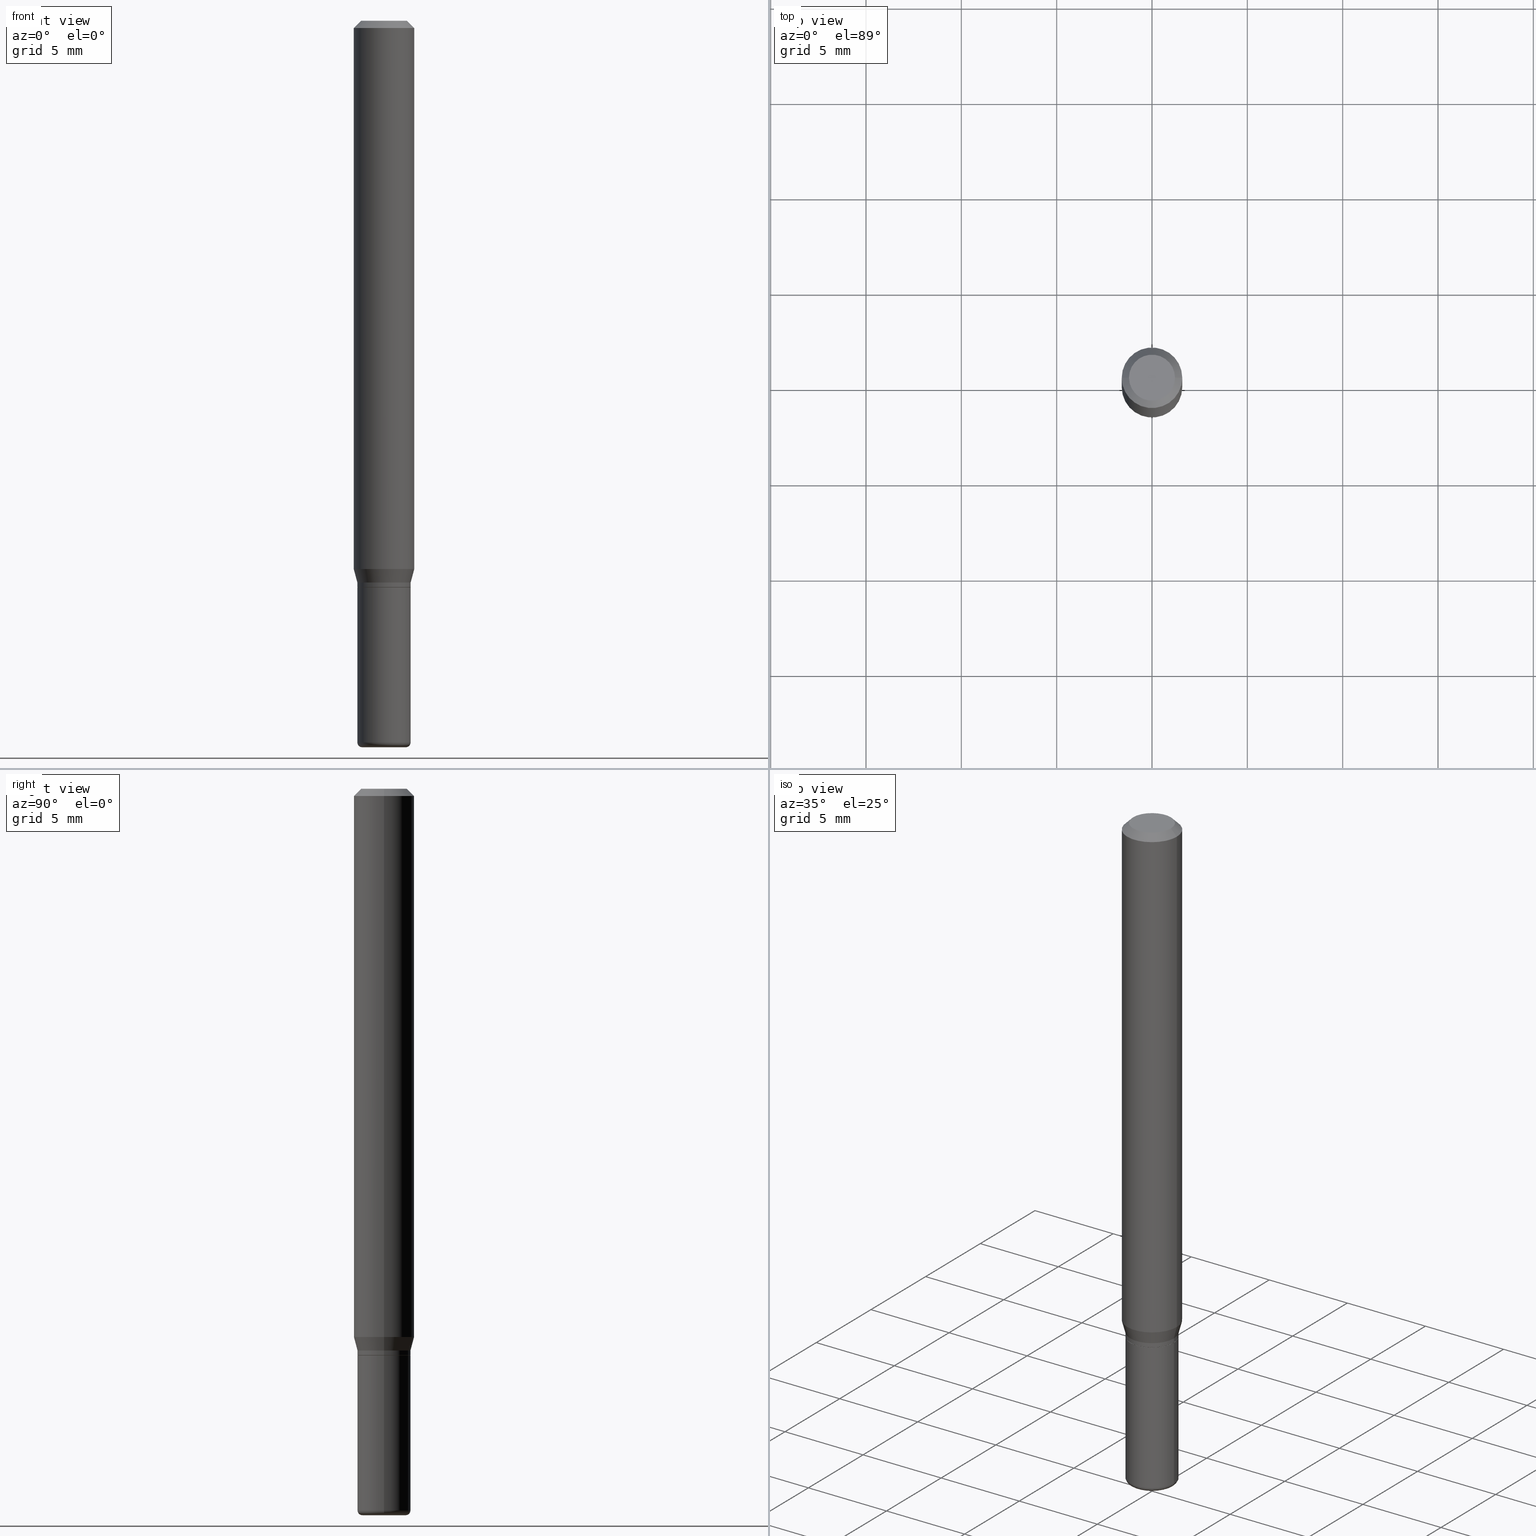
[diagram: canonical four-view strip — front | top / right | iso, engineering-drawing reading convention]
A machine part, canonical four-view strip (front | top / right | iso — engineering-drawing reading convention). The complete STEP part file that produces these views, byte-faithful:
ISO-10303-21;
HEADER;
FILE_DESCRIPTION (( 'STEP AP203' ),
    '1' );
FILE_NAME ('08614.STEP',
    '2024-02-29T19:59:59',
    ( '' ),
    ( '' ),
    'SwSTEP 2.0',
    'SolidWorks 2023',
    '' );
FILE_SCHEMA (( 'CONFIG_CONTROL_DESIGN' ));
ENDSEC;

DATA;
#1 = CARTESIAN_POINT ( 'NONE',  ( -0.05499999999999995171, -3.659319848389994547E-15, -1.160000000000000142 ) ) ;
#2 = DIRECTION ( 'NONE',  ( -2.445468806185136877E-29, 3.491481338843145188E-15, 1.000000000000000000 ) ) ;
#3 = VERTEX_POINT ( 'NONE', #42 ) ;
#4 = EDGE_CURVE ( 'NONE', #339, #324, #510, .T. ) ;
#5 = PRODUCT_DEFINITION_SHAPE ( 'NONE', 'NONE',  #169 ) ;
#6 = CARTESIAN_POINT ( 'NONE',  ( -0.05449999999999997208, -3.695138148283114316E-15, -1.170000000000000151 ) ) ;
#7 = EDGE_CURVE ( 'NONE', #324, #402, #245, .T. ) ;
#8 = EDGE_LOOP ( 'NONE', ( #106, #398, #51, #58 ) ) ;
#9 = EDGE_LOOP ( 'NONE', ( #229, #232, #21, #352 ) ) ;
#10 = PERSON_AND_ORGANIZATION_ROLE ( 'design_owner' ) ;
#11 = CARTESIAN_POINT ( 'NONE',  ( 0.05499999999999995864, -3.840629472727443437E-16, 2.681897226687762724E-30 ) ) ;
#12 = APPLICATION_CONTEXT ( 'configuration controlled 3d designs of mechanical parts and assemblies' ) ;
#13 = ORIENTED_EDGE ( 'NONE', *, *, #457, .F. ) ;
#14 = AXIS2_PLACEMENT_3D ( 'NONE', #66, #501, #412 ) ;
#15 =( CONVERSION_BASED_UNIT ( 'INCH', #92 ) LENGTH_UNIT ( ) NAMED_UNIT ( #43 ) );
#16 = CARTESIAN_POINT ( 'NONE',  ( 3.643748521215853910E-29, -5.202307194876288105E-15, -1.490000000000000213 ) ) ;
#17 = CC_DESIGN_APPROVAL ( #196, ( #129 ) ) ;
#18 = VERTEX_POINT ( 'NONE', #439 ) ;
#19 = CARTESIAN_POINT ( 'NONE',  ( -0.05499999999999995171, -4.252871675993329426E-15, -1.490000000000000213 ) ) ;
#20 = LINE ( 'NONE', #152, #279 ) ;
#21 = ORIENTED_EDGE ( 'NONE', *, *, #430, .T. ) ;
#22 = ORIENTED_EDGE ( 'NONE', *, *, #314, .F. ) ;
#23 = CYLINDRICAL_SURFACE ( 'NONE', #280, 0.05499999999999995864 ) ;
#24 = DIRECTION ( 'NONE',  ( -2.445468806185136597E-29, 3.491481338843145583E-15, 1.000000000000000000 ) ) ;
#25 = ORIENTED_EDGE ( 'NONE', *, *, #124, .T. ) ;
#26 = DIRECTION ( 'NONE',  ( -2.445468806185136597E-29, 3.491481338843145583E-15, 1.000000000000000000 ) ) ;
#27 = AXIS2_PLACEMENT_3D ( 'NONE', #515, #198, #281 ) ;
#28 = DIRECTION ( 'NONE',  ( -2.445468806185136877E-29, 3.491481338843145188E-15, 1.000000000000000000 ) ) ;
#29 = ADVANCED_FACE ( 'NONE', ( #182 ), #86, .T. ) ;
#30 = DIRECTION ( 'NONE',  ( -6.982962677686266711E-15, -1.000000000000000000, 3.491481338843145583E-15 ) ) ;
#31 = DATE_AND_TIME ( #71, #244 ) ;
#32 = CARTESIAN_POINT ( 'NONE',  ( 3.316907271900976589E-16, 0.04750000000000000749, -2.925296391183627249E-17 ) ) ;
#33 = LOCAL_TIME ( 14, 59, 59.00000000000000000, #341 ) ;
#34 = DIRECTION ( 'NONE',  ( -2.438088387897960049E-29, 3.491481338843145188E-15, 1.000000000000000000 ) ) ;
#35 = APPROVAL_DATE_TIME ( #415, #425 ) ;
#36 = CARTESIAN_POINT ( 'NONE',  ( -0.06250000000000000000, -3.508301250081177341E-15, -1.132009618943233376 ) ) ;
#37 = DIRECTION ( 'NONE',  ( -2.445468806185136597E-29, 3.491481338843145583E-15, 1.000000000000000000 ) ) ;
#38 = CLOSED_SHELL ( 'NONE', ( #258, #123, #465, #405, #443, #270 ) ) ;
#39 = AXIS2_PLACEMENT_3D ( 'NONE', #94, #256, #406 ) ;
#40 = CARTESIAN_POINT ( 'NONE',  ( 0.04750000000000000749, -4.035134999187568762E-16, 2.731847993664288856E-16 ) ) ;
#41 = CC_DESIGN_PERSON_AND_ORGANIZATION_ASSIGNMENT ( #450, #10, ( #464 ) ) ;
#42 = CARTESIAN_POINT ( 'NONE',  ( -0.04750000000000000749, 3.578768372314221353E-16, 2.731847993664239060E-16 ) ) ;
#43 = DIMENSIONAL_EXPONENTS ( 1.000000000000000000, 0.000000000000000000, 0.000000000000000000, 0.000000000000000000, 0.000000000000000000, 0.000000000000000000, 0.000000000000000000 ) ;
#44 = EDGE_LOOP ( 'NONE', ( #97, #294, #435, #461 ) ) ;
#45 = VECTOR ( 'NONE', #342, 39.37007874015748143 ) ;
#46 = EDGE_CURVE ( 'NONE', #402, #87, #483, .T. ) ;
#47 = LOCAL_TIME ( 14, 59, 59.00000000000000000, #462 ) ;
#48 = DIRECTION ( 'NONE',  ( -2.445468806185136597E-29, 3.491481338843145583E-15, 1.000000000000000000 ) ) ;
#49 = ORIENTED_EDGE ( 'NONE', *, *, #139, .F. ) ;
#50 = CARTESIAN_POINT ( 'NONE',  ( 0.000000000000000000, 0.000000000000000000, 0.000000000000000000 ) ) ;
#51 = ORIENTED_EDGE ( 'NONE', *, *, #89, .F. ) ;
#52 = DIRECTION ( 'NONE',  ( 1.000000000000000000, -6.982962677686269077E-15, 0.000000000000000000 ) ) ;
#53 = CYLINDRICAL_SURFACE ( 'NONE', #112, 0.05499999999999997946 ) ;
#54 = PERSON_AND_ORGANIZATION ( #332, #441 ) ;
#55 = DIRECTION ( 'NONE',  ( 1.000000000000000000, -6.982962677686262766E-15, 0.000000000000000000 ) ) ;
#56 = EDGE_CURVE ( 'NONE', #3, #414, #127, .T. ) ;
#57 = ORIENTED_EDGE ( 'NONE', *, *, #214, .T. ) ;
#58 = ORIENTED_EDGE ( 'NONE', *, *, #251, .F. ) ;
#59 = DIRECTION ( 'NONE',  ( 2.438088387897960049E-29, -3.491481338843145188E-15, -1.000000000000000000 ) ) ;
#60 = CARTESIAN_POINT ( 'NONE',  ( -6.680649051745406845E-45, 9.538196290434862081E-31, 2.731847993664263218E-16 ) ) ;
#61 = ORIENTED_EDGE ( 'NONE', *, *, #306, .F. ) ;
#62 = DATE_AND_TIME ( #304, #47 ) ;
#63 = LINE ( 'NONE', #343, #45 ) ;
#64 = ORIENTED_EDGE ( 'NONE', *, *, #476, .F. ) ;
#65 = DATE_TIME_ROLE ( 'classification_date' ) ;
#66 = CARTESIAN_POINT ( 'NONE',  ( 2.836743815174758520E-29, -4.050118353058049996E-15, -1.160000000000000142 ) ) ;
#67 = AXIS2_PLACEMENT_3D ( 'NONE', #375, #451, #263 ) ;
#68 = EDGE_LOOP ( 'NONE', ( #436, #291 ) ) ;
#69 = PERSON_AND_ORGANIZATION ( #332, #441 ) ;
#70 = CARTESIAN_POINT ( 'NONE',  ( 3.668203209277632395E-31, -5.237222008264614861E-17, -0.01499999999999970281 ) ) ;
#71 = CALENDAR_DATE ( 2024, 29, 2 ) ;
#72 = CARTESIAN_POINT ( 'NONE',  ( 0.06250000000000000000, -4.811533449433669144E-16, -0.01499999999999970281 ) ) ;
#73 = EDGE_CURVE ( 'NONE', #396, #226, #132, .T. ) ;
#74 = DATE_AND_TIME ( #459, #33 ) ;
#75 = DIRECTION ( 'NONE',  ( 2.445468806185136597E-29, -3.491481338843145583E-15, -1.000000000000000000 ) ) ;
#76 = CIRCLE ( 'NONE', #156, 0.009999999999999953371 ) ;
#77 = FACE_OUTER_BOUND ( 'NONE', #478, .T. ) ;
#78 = CARTESIAN_POINT ( 'NONE',  ( 0.000000000000000000, 0.000000000000000000, 0.000000000000000000 ) ) ;
#79 = SHAPE_DEFINITION_REPRESENTATION ( #5, #273 ) ;
#80 = DIRECTION ( 'NONE',  ( -2.445468806185136597E-29, 3.491481338843145583E-15, 1.000000000000000000 ) ) ;
#81 = AXIS2_PLACEMENT_3D ( 'NONE', #431, #385, #241 ) ;
#82 = CIRCLE ( 'NONE', #492, 0.04499999999999999833 ) ;
#83 = DIRECTION ( 'NONE',  ( -2.445468806185136597E-29, 3.491481338843145583E-15, 1.000000000000000000 ) ) ;
#84 = FACE_OUTER_BOUND ( 'NONE', #168, .T. ) ;
#85 = ORIENTED_EDGE ( 'NONE', *, *, #403, .T. ) ;
#86 = CYLINDRICAL_SURFACE ( 'NONE', #110, 0.06250000000000000000 ) ;
#87 = VERTEX_POINT ( 'NONE', #142 ) ;
#88 = ORIENTED_EDGE ( 'NONE', *, *, #89, .T. ) ;
#89 = EDGE_CURVE ( 'NONE', #18, #454, #171, .T. ) ;
#90 = CIRCLE ( 'NONE', #434, 0.04499999999999999833 ) ;
#91 = CIRCLE ( 'NONE', #271, 0.05499999999999997946 ) ;
#92 = LENGTH_MEASURE_WITH_UNIT ( LENGTH_MEASURE( 0.02539999999999999897 ), #141 );
#93 = VERTEX_POINT ( 'NONE', #6 ) ;
#94 = CARTESIAN_POINT ( 'NONE',  ( 2.861198503236610065E-29, -4.085033166446480067E-15, -1.170000000000000151 ) ) ;
#95 = APPROVAL_STATUS ( 'not_yet_approved' ) ;
#96 = CC_DESIGN_DATE_AND_TIME_ASSIGNMENT ( #74, #65, ( #474 ) ) ;
#97 = ORIENTED_EDGE ( 'NONE', *, *, #234, .F. ) ;
#98 = CIRCLE ( 'NONE', #120, 0.06250000000000000000 ) ;
#99 = DIRECTION ( 'NONE',  ( 1.000000000000000000, -6.982962677686268288E-15, 4.883557194083113462E-29 ) ) ;
#100 = LINE ( 'NONE', #221, #473 ) ;
#101 = ORIENTED_EDGE ( 'NONE', *, *, #214, .F. ) ;
#102 = ORIENTED_EDGE ( 'NONE', *, *, #195, .F. ) ;
#103 = PERSON_AND_ORGANIZATION ( #332, #441 ) ;
#104 = DIRECTION ( 'NONE',  ( -1.000000000000000000, 7.105427357600958471E-15, 0.000000000000000000 ) ) ;
#105 = EDGE_CURVE ( 'NONE', #93, #417, #427, .T. ) ;
#106 = ORIENTED_EDGE ( 'NONE', *, *, #457, .T. ) ;
#107 = CC_DESIGN_PERSON_AND_ORGANIZATION_ASSIGNMENT ( #151, #418, ( #129 ) ) ;
#108 = DATE_TIME_ROLE ( 'creation_date' ) ;
#109 = DIRECTION ( 'NONE',  ( 1.000000000000000000, -6.982962677686269077E-15, 0.000000000000000000 ) ) ;
#110 = AXIS2_PLACEMENT_3D ( 'NONE', #397, #219, #393 ) ;
#111 = CARTESIAN_POINT ( 'NONE',  ( 3.668203209277632395E-31, -5.237222008264614861E-17, -0.01499999999999970281 ) ) ;
#112 = AXIS2_PLACEMENT_3D ( 'NONE', #207, #224, #498 ) ;
#113 =( GEOMETRIC_REPRESENTATION_CONTEXT ( 3 ) GLOBAL_UNCERTAINTY_ASSIGNED_CONTEXT ( ( #283 ) ) GLOBAL_UNIT_ASSIGNED_CONTEXT ( ( #15, #290, #500 ) ) REPRESENTATION_CONTEXT ( 'NONE', 'WORKASPACE' ) );
#114 = EDGE_CURVE ( 'NONE', #225, #339, #491, .T. ) ;
#115 = DIRECTION ( 'NONE',  ( 1.000000000000000000, -6.982962677686269077E-15, 0.000000000000000000 ) ) ;
#116 = PERSON_AND_ORGANIZATION_ROLE ( 'classification_officer' ) ;
#117 = DIRECTION ( 'NONE',  ( 1.000000000000000000, -6.982962677686265922E-15, 4.876176775795935232E-29 ) ) ;
#118 = ADVANCED_FACE ( 'NONE', ( #446 ), #310, .T. ) ;
#119 = DIRECTION ( 'NONE',  ( 0.2588190451025199623, 1.565188264969632617E-15, 0.9659258262890684232 ) ) ;
#120 = AXIS2_PLACEMENT_3D ( 'NONE', #111, #272, #422 ) ;
#121 = CC_DESIGN_APPROVAL ( #425, ( #474 ) ) ;
#122 = DIRECTION ( 'NONE',  ( 1.000000000000000000, -6.982962677686268288E-15, 4.883557194083113462E-29 ) ) ;
#123 = ADVANCED_FACE ( 'NONE', ( #84 ), #53, .T. ) ;
#124 = EDGE_CURVE ( 'NONE', #396, #402, #243, .T. ) ;
#125 = CARTESIAN_POINT ( 'NONE',  ( 0.06250000000000000000, -4.388825627286631627E-15, -1.132009618943233376 ) ) ;
#126 = VERTEX_POINT ( 'NONE', #145 ) ;
#127 = CIRCLE ( 'NONE', #189, 0.04750000000000000749 ) ;
#128 = AXIS2_PLACEMENT_3D ( 'NONE', #518, #167, #122 ) ;
#129 = PRODUCT_DEFINITION_FORMATION_WITH_SPECIFIED_SOURCE ( 'ANY', '', #464, .NOT_KNOWN. ) ;
#130 = ORIENTED_EDGE ( 'NONE', *, *, #46, .F. ) ;
#131 = ORIENTED_EDGE ( 'NONE', *, *, #208, .T. ) ;
#132 = LINE ( 'NONE', #213, #471 ) ;
#133 = EDGE_CURVE ( 'NONE', #87, #226, #238, .T. ) ;
#134 = EDGE_LOOP ( 'NONE', ( #130, #301, #216, #336 ) ) ;
#135 = AXIS2_PLACEMENT_3D ( 'NONE', #70, #408, #233 ) ;
#136 = AXIS2_PLACEMENT_3D ( 'NONE', #376, #379, #104 ) ;
#137 = APPROVAL_PERSON_ORGANIZATION ( #69, #196, #197 ) ;
#138 = ORIENTED_EDGE ( 'NONE', *, *, #124, .F. ) ;
#139 = EDGE_CURVE ( 'NONE', #18, #126, #187, .T. ) ;
#140 = ADVANCED_FACE ( 'NONE', ( #149 ), #335, .T. ) ;
#141 =( LENGTH_UNIT ( ) NAMED_UNIT ( * ) SI_UNIT ( $, .METRE. ) );
#142 = CARTESIAN_POINT ( 'NONE',  ( -0.06250000000000000000, -1.558292130156879916E-15, -0.01499999999999970281 ) ) ;
#143 = ORIENTED_EDGE ( 'NONE', *, *, #178, .T. ) ;
#144 = FACE_OUTER_BOUND ( 'NONE', #68, .T. ) ;
#145 = CARTESIAN_POINT ( 'NONE',  ( 0.05500000000000000028, -4.469096113719225052E-15, -1.170000000000000151 ) ) ;
#146 = ORIENTED_EDGE ( 'NONE', *, *, #390, .F. ) ;
#147 = EDGE_CURVE ( 'NONE', #417, #225, #100, .T. ) ;
#148 = CONICAL_SURFACE ( 'NONE', #14, 0.05499999999999995171, 0.2617993877991485752 ) ;
#149 = FACE_OUTER_BOUND ( 'NONE', #186, .T. ) ;
#150 = ORIENTED_EDGE ( 'NONE', *, *, #208, .F. ) ;
#151 = PERSON_AND_ORGANIZATION ( #332, #441 ) ;
#152 = CARTESIAN_POINT ( 'NONE',  ( -0.05499999999999995864, 3.907985046680548084E-16, -2.705414299640196260E-30 ) ) ;
#153 = ORIENTED_EDGE ( 'NONE', *, *, #240, .F. ) ;
#154 = DIRECTION ( 'NONE',  ( 0.7071067811864267805, -2.468850131080992517E-15, 0.7071067811866682540 ) ) ;
#155 = FACE_OUTER_BOUND ( 'NONE', #484, .T. ) ;
#156 = AXIS2_PLACEMENT_3D ( 'NONE', #382, #30, #194 ) ;
#157 = MANIFOLD_SOLID_BREP ( 'Body-Move/Copy2[2]', #488 ) ;
#158 = ADVANCED_FACE ( 'NONE', ( #372 ), #148, .T. ) ;
#159 = PERSON_AND_ORGANIZATION ( #332, #441 ) ;
#160 = DIRECTION ( 'NONE',  ( 1.000000000000000000, -6.982962677686265922E-15, 4.876176775795935793E-29 ) ) ;
#161 = COORDINATED_UNIVERSAL_TIME_OFFSET ( 5, 0, .BEHIND. ) ;
#162 = LINE ( 'NONE', #72, #286 ) ;
#163 = CARTESIAN_POINT ( 'NONE',  ( 0.05499999999999995171, -4.434181300330794192E-15, -1.160000000000000142 ) ) ;
#164 = EDGE_CURVE ( 'NONE', #288, #225, #355, .T. ) ;
#165 = VECTOR ( 'NONE', #419, 39.37007874015748143 ) ;
#166 = AXIS2_PLACEMENT_3D ( 'NONE', #50, #181, #366 ) ;
#167 = DIRECTION ( 'NONE',  ( -2.445468806185136597E-29, 3.491481338843145583E-15, 1.000000000000000000 ) ) ;
#168 = EDGE_LOOP ( 'NONE', ( #88, #57, #499, #49 ) ) ;
#169 = PRODUCT_DEFINITION ( 'UNKNOWN', '', #129, #472 ) ;
#170 = DIRECTION ( 'NONE',  ( -2.445468806185136597E-29, 3.491481338843145583E-15, 1.000000000000000000 ) ) ;
#171 = CIRCLE ( 'NONE', #452, 0.05499999999999995171 ) ;
#172 = AXIS2_PLACEMENT_3D ( 'NONE', #455, #48, #52 ) ;
#173 = ORIENTED_EDGE ( 'NONE', *, *, #114, .F. ) ;
#174 = DIRECTION ( 'NONE',  ( 1.000000000000000000, -6.982962677686269077E-15, 0.000000000000000000 ) ) ;
#175 = CARTESIAN_POINT ( 'NONE',  ( 2.861198503236610065E-29, -4.085033166446480067E-15, -1.170000000000000151 ) ) ;
#176 = DIRECTION ( 'NONE',  ( -2.445468806185136597E-29, 3.491481338843145583E-15, 1.000000000000000000 ) ) ;
#177 = DIRECTION ( 'NONE',  ( -2.445468806185136877E-29, 3.491481338843145188E-15, 1.000000000000000000 ) ) ;
#178 = EDGE_CURVE ( 'NONE', #288, #324, #20, .T. ) ;
#179 = AXIS2_PLACEMENT_3D ( 'NONE', #60, #24, #456 ) ;
#180 = AXIS2_PLACEMENT_3D ( 'NONE', #445, #59, #262 ) ;
#181 = DIRECTION ( 'NONE',  ( 0.000000000000000000, 0.000000000000000000, 1.000000000000000000 ) ) ;
#182 = FACE_OUTER_BOUND ( 'NONE', #134, .T. ) ;
#183 = ORIENTED_EDGE ( 'NONE', *, *, #403, .F. ) ;
#184 = DATE_AND_TIME ( #220, #261 ) ;
#185 = CARTESIAN_POINT ( 'NONE',  ( 2.768294211427200085E-29, -3.952390459931239169E-15, -1.132009618943233376 ) ) ;
#186 = EDGE_LOOP ( 'NONE', ( #25, #257, #153, #192 ) ) ;
#187 = LINE ( 'NONE', #268, #165 ) ;
#188 = EDGE_LOOP ( 'NONE', ( #331, #495, #380, #360 ) ) ;
#189 = AXIS2_PLACEMENT_3D ( 'NONE', #215, #369, #328 ) ;
#190 = CIRCLE ( 'NONE', #370, 0.06250000000000000000 ) ;
#191 = DIRECTION ( 'NONE',  ( 1.000000000000000000, -6.982962677686262766E-15, 0.000000000000000000 ) ) ;
#192 = ORIENTED_EDGE ( 'NONE', *, *, #73, .F. ) ;
#193 = DIRECTION ( 'NONE',  ( 1.000000000000000000, -6.982962677686266711E-15, 0.000000000000000000 ) ) ;
#194 = DIRECTION ( 'NONE',  ( 1.000000000000000000, -6.982962677686269077E-15, 0.000000000000000000 ) ) ;
#195 = EDGE_CURVE ( 'NONE', #414, #3, #479, .T. ) ;
#196 = APPROVAL ( #381, 'UNSPECIFIED' ) ;
#197 = APPROVAL_ROLE ( '' ) ;
#198 = DIRECTION ( 'NONE',  ( -2.445468806185136597E-29, 3.491481338843145583E-15, 1.000000000000000000 ) ) ;
#199 = APPROVAL_ROLE ( '' ) ;
#200 = DIRECTION ( 'NONE',  ( 1.000000000000000000, -6.982962677686265922E-15, 4.876176775795935793E-29 ) ) ;
#201 = EDGE_CURVE ( 'NONE', #289, #454, #347, .T. ) ;
#202 = CARTESIAN_POINT ( 'NONE',  ( 2.861198503236610065E-29, -4.085033166446480067E-15, -1.170000000000000151 ) ) ;
#203 = CARTESIAN_POINT ( 'NONE',  ( 2.836743815174758520E-29, -4.050118353058049996E-15, -1.160000000000000142 ) ) ;
#204 = AXIS2_PLACEMENT_3D ( 'NONE', #78, #37, #160 ) ;
#205 = CC_DESIGN_SECURITY_CLASSIFICATION ( #474, ( #129 ) ) ;
#206 = CARTESIAN_POINT ( 'NONE',  ( 0.05449999999999997208, -4.465604632380382045E-15, -1.170000000000000151 ) ) ;
#207 = CARTESIAN_POINT ( 'NONE',  ( 0.000000000000000000, 0.000000000000000000, 0.000000000000000000 ) ) ;
#208 = EDGE_CURVE ( 'NONE', #454, #18, #511, .T. ) ;
#209 = ORIENTED_EDGE ( 'NONE', *, *, #497, .F. ) ;
#210 = AXIS2_PLACEMENT_3D ( 'NONE', #175, #367, #326 ) ;
#211 = APPROVAL_PERSON_ORGANIZATION ( #276, #425, #199 ) ;
#212 = CARTESIAN_POINT ( 'NONE',  ( 3.643748521215853910E-29, -5.202307194876288105E-15, -1.490000000000000213 ) ) ;
#213 = CARTESIAN_POINT ( 'NONE',  ( 0.06250000000000000000, -4.364351673553916694E-16, 3.047610484872459871E-30 ) ) ;
#214 = EDGE_CURVE ( 'NONE', #454, #437, #63, .T. ) ;
#215 = CARTESIAN_POINT ( 'NONE',  ( -6.680649051745406845E-45, 9.538196290434862081E-31, 2.731847993664263218E-16 ) ) ;
#216 = ORIENTED_EDGE ( 'NONE', *, *, #73, .T. ) ;
#217 = DIRECTION ( 'NONE',  ( 1.000000000000000000, -6.982962677686273810E-15, 0.000000000000000000 ) ) ;
#218 = FACE_OUTER_BOUND ( 'NONE', #373, .T. ) ;
#219 = DIRECTION ( 'NONE',  ( -2.445468806185136597E-29, 3.491481338843145583E-15, 1.000000000000000000 ) ) ;
#220 = CALENDAR_DATE ( 2024, 29, 2 ) ;
#221 = CARTESIAN_POINT ( 'NONE',  ( 0.05449999999999997208, -4.465604632380382045E-15, -1.170000000000000151 ) ) ;
#222 = ORIENTED_EDGE ( 'NONE', *, *, #195, .T. ) ;
#223 = CARTESIAN_POINT ( 'NONE',  ( 3.668203209277704895E-29, -5.237222008264718177E-15, -1.500000000000000222 ) ) ;
#224 = DIRECTION ( 'NONE',  ( -2.445468806185136597E-29, 3.491481338843145583E-15, 1.000000000000000000 ) ) ;
#225 = VERTEX_POINT ( 'NONE', #309 ) ;
#226 = VERTEX_POINT ( 'NONE', #344 ) ;
#227 = EDGE_CURVE ( 'NONE', #402, #396, #190, .T. ) ;
#228 = DIRECTION ( 'NONE',  ( -2.445468806185136597E-29, 3.491481338843145583E-15, 1.000000000000000000 ) ) ;
#229 = ORIENTED_EDGE ( 'NONE', *, *, #7, .F. ) ;
#230 = CONICAL_SURFACE ( 'NONE', #135, 0.06250000000000000000, 0.7853981633974488341 ) ;
#231 = DIRECTION ( 'NONE',  ( 1.000000000000000000, -6.982962677686273021E-15, 0.000000000000000000 ) ) ;
#232 = ORIENTED_EDGE ( 'NONE', *, *, #476, .T. ) ;
#233 = DIRECTION ( 'NONE',  ( -1.000000000000000000, 6.982962677686266711E-15, 0.000000000000000000 ) ) ;
#234 = EDGE_CURVE ( 'NONE', #93, #288, #505, .T. ) ;
#235 = DIRECTION ( 'NONE',  ( 2.438088387897960049E-29, -3.491481338843145188E-15, -1.000000000000000000 ) ) ;
#236 = APPROVAL_STATUS ( 'not_yet_approved' ) ;
#237 = DIRECTION ( 'NONE',  ( -1.000000000000000000, 6.982962677686266711E-15, 0.000000000000000000 ) ) ;
#238 = CIRCLE ( 'NONE', #252, 0.06250000000000000000 ) ;
#239 = CARTESIAN_POINT ( 'NONE',  ( 2.861198503236610065E-29, -4.085033166446480067E-15, -1.170000000000000151 ) ) ;
#240 = EDGE_CURVE ( 'NONE', #226, #87, #98, .T. ) ;
#241 = DIRECTION ( 'NONE',  ( 1.000000000000000000, -6.982962677686265922E-15, 4.876176775795935793E-29 ) ) ;
#242 = DIRECTION ( 'NONE',  ( 1.000000000000000000, -6.982962677686262766E-15, 0.000000000000000000 ) ) ;
#243 = CIRCLE ( 'NONE', #502, 0.06250000000000000000 ) ;
#244 = LOCAL_TIME ( 14, 59, 59.00000000000000000, #384 ) ;
#245 = LINE ( 'NONE', #1, #329 ) ;
#246 = ADVANCED_FACE ( 'NONE', ( #155 ), #230, .T. ) ;
#247 = ORIENTED_EDGE ( 'NONE', *, *, #4, .T. ) ;
#248 = ORIENTED_EDGE ( 'NONE', *, *, #56, .T. ) ;
#249 = APPLICATION_PROTOCOL_DEFINITION ( 'international standard', 'config_control_design', 1994, #383 ) ;
#250 = CARTESIAN_POINT ( 'NONE',  ( -0.06250000000000000000, 4.440892098500626162E-16, -3.074334431409316114E-30 ) ) ;
#251 = EDGE_CURVE ( 'NONE', #253, #18, #76, .T. ) ;
#252 = AXIS2_PLACEMENT_3D ( 'NONE', #300, #460, #193 ) ;
#253 = VERTEX_POINT ( 'NONE', #509 ) ;
#254 = ORIENTED_EDGE ( 'NONE', *, *, #178, .F. ) ;
#255 = DIRECTION ( 'NONE',  ( -2.445468806185136597E-29, 3.491481338843145583E-15, 1.000000000000000000 ) ) ;
#256 = DIRECTION ( 'NONE',  ( -2.445468806185136597E-29, 3.491481338843145583E-15, 1.000000000000000000 ) ) ;
#257 = ORIENTED_EDGE ( 'NONE', *, *, #46, .T. ) ;
#258 = ADVANCED_FACE ( 'NONE', ( #449 ), #516, .T. ) ;
#259 = FACE_OUTER_BOUND ( 'NONE', #359, .T. ) ;
#260 = AXIS2_PLACEMENT_3D ( 'NONE', #202, #354, #242 ) ;
#261 = LOCAL_TIME ( 14, 59, 59.00000000000000000, #327 ) ;
#262 = DIRECTION ( 'NONE',  ( -1.000000000000000000, 6.982962677686265922E-15, -4.876176775795935793E-29 ) ) ;
#263 = DIRECTION ( 'NONE',  ( 1.000000000000000000, -6.982962677686266711E-15, 4.876176775795935793E-29 ) ) ;
#264 = ORIENTED_EDGE ( 'NONE', *, *, #251, .T. ) ;
#265 = ORIENTED_EDGE ( 'NONE', *, *, #139, .T. ) ;
#266 = CALENDAR_DATE ( 2024, 29, 2 ) ;
#267 = CARTESIAN_POINT ( 'NONE',  ( 3.643748521215853910E-29, -5.202307194876288105E-15, -1.490000000000000213 ) ) ;
#268 = CARTESIAN_POINT ( 'NONE',  ( 0.05499999999999997946, -3.840629472727444916E-16, 2.681897226687763425E-30 ) ) ;
#269 = AXIS2_PLACEMENT_3D ( 'NONE', #313, #80, #117 ) ;
#270 = ADVANCED_FACE ( 'NONE', ( #259 ), #426, .F. ) ;
#271 = AXIS2_PLACEMENT_3D ( 'NONE', #490, #368, #334 ) ;
#272 = DIRECTION ( 'NONE',  ( -2.445468806185136597E-29, 3.491481338843145583E-15, 1.000000000000000000 ) ) ;
#273 = ADVANCED_BREP_SHAPE_REPRESENTATION ( '08614', ( #323, #157, #166 ), #113 ) ;
#274 = APPROVAL_DATE_TIME ( #184, #394 ) ;
#275 = DIRECTION ( 'NONE',  ( 0.7071067811865479058, -7.319954787623257623E-15, -0.7071067811865471286 ) ) ;
#276 = PERSON_AND_ORGANIZATION ( #332, #441 ) ;
#277 = CARTESIAN_POINT ( 'NONE',  ( 3.668203209277632395E-31, -5.237222008264614861E-17, -0.01499999999999970281 ) ) ;
#278 = DIRECTION ( 'NONE',  ( -1.000000000000000000, 6.982962677686265922E-15, -4.876176775795935793E-29 ) ) ;
#279 = VECTOR ( 'NONE', #28, 39.37007874015748143 ) ;
#280 = AXIS2_PLACEMENT_3D ( 'NONE', #298, #176, #485 ) ;
#281 = DIRECTION ( 'NONE',  ( 1.000000000000000000, -6.982962677686273810E-15, 0.000000000000000000 ) ) ;
#282 = PLANE ( 'NONE',  #292 ) ;
#283 = UNCERTAINTY_MEASURE_WITH_UNIT (LENGTH_MEASURE( 1.000000000000000082E-05 ), #15, 'distance_accuracy_value', 'NONE');
#284 = ORIENTED_EDGE ( 'NONE', *, *, #105, .F. ) ;
#285 = CC_DESIGN_PERSON_AND_ORGANIZATION_ASSIGNMENT ( #103, #116, ( #474 ) ) ;
#286 = VECTOR ( 'NONE', #275, 39.37007874015748143 ) ;
#287 = ORIENTED_EDGE ( 'NONE', *, *, #508, .T. ) ;
#288 = VERTEX_POINT ( 'NONE', #315 ) ;
#289 = VERTEX_POINT ( 'NONE', #351 ) ;
#290 =( NAMED_UNIT ( * ) PLANE_ANGLE_UNIT ( ) SI_UNIT ( $, .RADIAN. ) );
#291 = ORIENTED_EDGE ( 'NONE', *, *, #497, .T. ) ;
#292 = AXIS2_PLACEMENT_3D ( 'NONE', #32, #235, #278 ) ;
#293 = DIRECTION ( 'NONE',  ( -0.2588190451025199623, 5.211531920934540787E-15, 0.9659258262890684232 ) ) ;
#294 = ORIENTED_EDGE ( 'NONE', *, *, #105, .T. ) ;
#295 = APPLICATION_PROTOCOL_DEFINITION ( 'international standard', 'config_control_design', 1994, #12 ) ;
#296 = DIRECTION ( 'NONE',  ( 1.000000000000000000, -6.982962677686269077E-15, 0.000000000000000000 ) ) ;
#297 = ORIENTED_EDGE ( 'NONE', *, *, #390, .T. ) ;
#298 = CARTESIAN_POINT ( 'NONE',  ( 0.000000000000000000, 0.000000000000000000, 0.000000000000000000 ) ) ;
#299 = ADVANCED_FACE ( 'NONE', ( #392 ), #517, .T. ) ;
#300 = CARTESIAN_POINT ( 'NONE',  ( 3.668203209277632395E-31, -5.237222008264614861E-17, -0.01499999999999970281 ) ) ;
#301 = ORIENTED_EDGE ( 'NONE', *, *, #227, .T. ) ;
#302 = CARTESIAN_POINT ( 'NONE',  ( 2.859975768833516703E-29, -4.083287425777058564E-15, -1.169499999999999984 ) ) ;
#303 = ORIENTED_EDGE ( 'NONE', *, *, #201, .F. ) ;
#304 = CALENDAR_DATE ( 2024, 29, 2 ) ;
#305 = DIRECTION ( 'NONE',  ( -0.7071067811864267805, 7.493145998869918709E-15, 0.7071067811866682540 ) ) ;
#306 = EDGE_CURVE ( 'NONE', #417, #93, #401, .T. ) ;
#307 = ORIENTED_EDGE ( 'NONE', *, *, #4, .F. ) ;
#308 = PERSON_AND_ORGANIZATION_ROLE ( 'creator' ) ;
#309 = CARTESIAN_POINT ( 'NONE',  ( 0.05499999999999997946, -4.467350373049803548E-15, -1.169499999999999984 ) ) ;
#310 = CONICAL_SURFACE ( 'NONE', #39, 0.05449999999999997208, 0.7853981633972775267 ) ;
#311 = DIRECTION ( 'NONE',  ( -2.445468806185136597E-29, 3.491481338843145583E-15, 1.000000000000000000 ) ) ;
#312 = FACE_OUTER_BOUND ( 'NONE', #486, .T. ) ;
#313 = CARTESIAN_POINT ( 'NONE',  ( 0.000000000000000000, 0.000000000000000000, 0.000000000000000000 ) ) ;
#314 = EDGE_CURVE ( 'NONE', #3, #87, #475, .T. ) ;
#315 = CARTESIAN_POINT ( 'NONE',  ( -0.05499999999999997946, -3.692488921109003115E-15, -1.169499999999999984 ) ) ;
#316 = VECTOR ( 'NONE', #318, 39.37007874015748143 ) ;
#317 = AXIS2_PLACEMENT_3D ( 'NONE', #212, #255, #99 ) ;
#318 = DIRECTION ( 'NONE',  ( -0.7071067811865479058, 2.468850131082261005E-15, -0.7071067811865471286 ) ) ;
#319 = ADVANCED_FACE ( 'NONE', ( #77 ), #353, .F. ) ;
#320 = DIRECTION ( 'NONE',  ( -2.445468806185136597E-29, 3.491481338843145583E-15, 1.000000000000000000 ) ) ;
#321 = VECTOR ( 'NONE', #119, 39.37007874015748854 ) ;
#322 = ORIENTED_EDGE ( 'NONE', *, *, #314, .T. ) ;
#323 = MANIFOLD_SOLID_BREP ( 'Body-Move/Copy2[1]', #38 ) ;
#324 = VERTEX_POINT ( 'NONE', #477 ) ;
#325 = DIRECTION ( 'NONE',  ( -2.445468806185136597E-29, 3.491481338843145583E-15, 1.000000000000000000 ) ) ;
#326 = DIRECTION ( 'NONE',  ( 1.000000000000000000, -6.982962677686273810E-15, 0.000000000000000000 ) ) ;
#327 = COORDINATED_UNIVERSAL_TIME_OFFSET ( 5, 0, .BEHIND. ) ;
#328 = DIRECTION ( 'NONE',  ( 1.000000000000000000, -6.982962677686266711E-15, 4.852736867747365086E-29 ) ) ;
#329 = VECTOR ( 'NONE', #293, 39.37007874015748854 ) ;
#330 = CIRCLE ( 'NONE', #260, 0.05500000000000000028 ) ;
#331 = ORIENTED_EDGE ( 'NONE', *, *, #306, .T. ) ;
#332 = PERSON ( 'UNSPECIFIED', 'UNSPECIFIED', 'UNSPECIFIED', ('UNSPECIFIED'), ('UNSPECIFIED'), ('UNSPECIFIED') ) ;
#333 = ORIENTED_EDGE ( 'NONE', *, *, #430, .F. ) ;
#334 = DIRECTION ( 'NONE',  ( 1.000000000000000000, -6.982962677686273021E-15, 0.000000000000000000 ) ) ;
#335 = CYLINDRICAL_SURFACE ( 'NONE', #67, 0.06250000000000000000 ) ;
#336 = ORIENTED_EDGE ( 'NONE', *, *, #133, .F. ) ;
#337 = DIRECTION ( 'NONE',  ( -2.445468806185136597E-29, 3.491481338843145583E-15, 1.000000000000000000 ) ) ;
#338 = VECTOR ( 'NONE', #305, 39.37007874015748143 ) ;
#339 = VERTEX_POINT ( 'NONE', #163 ) ;
#340 = LOCAL_TIME ( 14, 59, 59.00000000000000000, #161 ) ;
#341 = COORDINATED_UNIVERSAL_TIME_OFFSET ( 5, 0, .BEHIND. ) ;
#342 = DIRECTION ( 'NONE',  ( -2.445468806185136877E-29, 3.491481338843145188E-15, 1.000000000000000000 ) ) ;
#343 = CARTESIAN_POINT ( 'NONE',  ( -0.05499999999999997946, 3.907985046680549563E-16, -2.705414299640196961E-30 ) ) ;
#344 = CARTESIAN_POINT ( 'NONE',  ( 0.06250000000000000000, -4.888073874380378612E-16, -0.01499999999999970281 ) ) ;
#345 = ADVANCED_FACE ( 'NONE', ( #312 ), #282, .F. ) ;
#346 = VECTOR ( 'NONE', #2, 39.37007874015748143 ) ;
#347 = CIRCLE ( 'NONE', #136, 0.009999999999999953371 ) ;
#348 = AXIS2_PLACEMENT_3D ( 'NONE', #239, #83, #217 ) ;
#349 = APPROVAL_DATE_TIME ( #31, #196 ) ;
#350 = DIRECTION ( 'NONE',  ( 1.000000000000000000, -6.982962677686269077E-15, 0.000000000000000000 ) ) ;
#351 = CARTESIAN_POINT ( 'NONE',  ( -0.04499999999999999833, -4.864493233690452733E-15, -1.500000000000000222 ) ) ;
#352 = ORIENTED_EDGE ( 'NONE', *, *, #227, .F. ) ;
#353 = PLANE ( 'NONE',  #81 ) ;
#354 = DIRECTION ( 'NONE',  ( -2.445468806185136597E-29, 3.491481338843145583E-15, 1.000000000000000000 ) ) ;
#355 = CIRCLE ( 'NONE', #440, 0.05499999999999997946 ) ;
#356 = ADVANCED_FACE ( 'NONE', ( #391 ), #489, .T. ) ;
#357 = PRODUCT_RELATED_PRODUCT_CATEGORY ( 'detail', '', ( #464 ) ) ;
#358 = FACE_OUTER_BOUND ( 'NONE', #365, .T. ) ;
#359 = EDGE_LOOP ( 'NONE', ( #13, #183 ) ) ;
#360 = ORIENTED_EDGE ( 'NONE', *, *, #147, .F. ) ;
#361 = VECTOR ( 'NONE', #177, 39.37007874015748143 ) ;
#362 = CC_DESIGN_APPROVAL ( #394, ( #169 ) ) ;
#363 = DIRECTION ( 'NONE',  ( -2.445468806185136597E-29, 3.491481338843145583E-15, 1.000000000000000000 ) ) ;
#364 = DIRECTION ( 'NONE',  ( -2.445468806185136877E-29, 3.491481338843145188E-15, 1.000000000000000000 ) ) ;
#365 = EDGE_LOOP ( 'NONE', ( #102, #297, #400, #22 ) ) ;
#366 = DIRECTION ( 'NONE',  ( 1.000000000000000000, 0.000000000000000000, 0.000000000000000000 ) ) ;
#367 = DIRECTION ( 'NONE',  ( -2.445468806185136597E-29, 3.491481338843145583E-15, 1.000000000000000000 ) ) ;
#368 = DIRECTION ( 'NONE',  ( -2.445468806185136597E-29, 3.491481338843145583E-15, 1.000000000000000000 ) ) ;
#369 = DIRECTION ( 'NONE',  ( -2.445468806185136597E-29, 3.491481338843145583E-15, 1.000000000000000000 ) ) ;
#370 = AXIS2_PLACEMENT_3D ( 'NONE', #506, #26, #191 ) ;
#371 = CIRCLE ( 'NONE', #453, 0.05500000000000000028 ) ;
#372 = FACE_OUTER_BOUND ( 'NONE', #9, .T. ) ;
#373 = EDGE_LOOP ( 'NONE', ( #254, #493, #482, #64 ) ) ;
#374 = CARTESIAN_POINT ( 'NONE',  ( 2.861198503236610065E-29, -4.085033166446480067E-15, -1.170000000000000151 ) ) ;
#375 = CARTESIAN_POINT ( 'NONE',  ( 0.000000000000000000, 0.000000000000000000, 0.000000000000000000 ) ) ;
#376 = CARTESIAN_POINT ( 'NONE',  ( -0.04499999999999999833, -4.882562963784243527E-15, -1.490000000000000213 ) ) ;
#377 = AXIS2_PLACEMENT_3D ( 'NONE', #423, #34, #200 ) ;
#378 = SECURITY_CLASSIFICATION_LEVEL ( 'unclassified' ) ;
#379 = DIRECTION ( 'NONE',  ( 7.105427357601001859E-15, 1.000000000000000000, -3.491481338843145583E-15 ) ) ;
#380 = ORIENTED_EDGE ( 'NONE', *, *, #508, .F. ) ;
#381 = APPROVAL_STATUS ( 'not_yet_approved' ) ;
#382 = CARTESIAN_POINT ( 'NONE',  ( 0.04499999999999999833, -5.516540515372169792E-15, -1.490000000000000213 ) ) ;
#383 = APPLICATION_CONTEXT ( 'configuration controlled 3d designs of mechanical parts and assemblies' ) ;
#384 = COORDINATED_UNIVERSAL_TIME_OFFSET ( 5, 0, .BEHIND. ) ;
#385 = DIRECTION ( 'NONE',  ( -2.438088387897960049E-29, 3.491481338843145188E-15, 1.000000000000000000 ) ) ;
#386 = CONICAL_SURFACE ( 'NONE', #387, 0.06250000000000000000, 0.7853981633974488341 ) ;
#387 = AXIS2_PLACEMENT_3D ( 'NONE', #277, #75, #237 ) ;
#388 = LINE ( 'NONE', #469, #321 ) ;
#389 = CARTESIAN_POINT ( 'NONE',  ( -0.05500000000000000028, -4.252871675993329426E-15, -1.170000000000000151 ) ) ;
#390 = EDGE_CURVE ( 'NONE', #414, #226, #162, .T. ) ;
#391 = FACE_OUTER_BOUND ( 'NONE', #458, .T. ) ;
#392 = FACE_OUTER_BOUND ( 'NONE', #438, .T. ) ;
#393 = DIRECTION ( 'NONE',  ( 1.000000000000000000, -6.982962677686266711E-15, 4.876176775795935793E-29 ) ) ;
#394 = APPROVAL ( #95, 'UNSPECIFIED' ) ;
#395 = ORIENTED_EDGE ( 'NONE', *, *, #133, .T. ) ;
#396 = VERTEX_POINT ( 'NONE', #125 ) ;
#397 = CARTESIAN_POINT ( 'NONE',  ( 0.000000000000000000, 0.000000000000000000, 0.000000000000000000 ) ) ;
#398 = ORIENTED_EDGE ( 'NONE', *, *, #201, .T. ) ;
#399 = APPROVAL_ROLE ( '' ) ;
#400 = ORIENTED_EDGE ( 'NONE', *, *, #240, .T. ) ;
#401 = CIRCLE ( 'NONE', #27, 0.05449999999999997208 ) ;
#402 = VERTEX_POINT ( 'NONE', #36 ) ;
#403 = EDGE_CURVE ( 'NONE', #289, #253, #90, .T. ) ;
#404 = PLANE ( 'NONE',  #180 ) ;
#405 = ADVANCED_FACE ( 'NONE', ( #513 ), #466, .T. ) ;
#406 = DIRECTION ( 'NONE',  ( 1.000000000000000000, -6.982962677686273810E-15, 0.000000000000000000 ) ) ;
#407 = CC_DESIGN_PERSON_AND_ORGANIZATION_ASSIGNMENT ( #159, #467, ( #129 ) ) ;
#408 = DIRECTION ( 'NONE',  ( 2.445468806185136597E-29, -3.491481338843145583E-15, -1.000000000000000000 ) ) ;
#409 = AXIS2_PLACEMENT_3D ( 'NONE', #481, #320, #494 ) ;
#410 = AXIS2_PLACEMENT_3D ( 'NONE', #203, #311, #115 ) ;
#411 = DIRECTION ( 'NONE',  ( 1.000000000000000000, -6.982962677686262766E-15, 0.000000000000000000 ) ) ;
#412 = DIRECTION ( 'NONE',  ( 1.000000000000000000, -6.982962677686269077E-15, 0.000000000000000000 ) ) ;
#413 = EDGE_CURVE ( 'NONE', #126, #437, #330, .T. ) ;
#414 = VERTEX_POINT ( 'NONE', #40 ) ;
#415 = DATE_AND_TIME ( #266, #340 ) ;
#416 = DIRECTION ( 'NONE',  ( -2.445468806185136597E-29, 3.491481338843145583E-15, 1.000000000000000000 ) ) ;
#417 = VERTEX_POINT ( 'NONE', #206 ) ;
#418 = PERSON_AND_ORGANIZATION_ROLE ( 'creator' ) ;
#419 = DIRECTION ( 'NONE',  ( -2.445468806185136877E-29, 3.491481338843145188E-15, 1.000000000000000000 ) ) ;
#420 = AXIS2_PLACEMENT_3D ( 'NONE', #267, #416, #109 ) ;
#421 = PERSON_AND_ORGANIZATION ( #332, #441 ) ;
#422 = DIRECTION ( 'NONE',  ( 1.000000000000000000, -6.982962677686266711E-15, 0.000000000000000000 ) ) ;
#423 = CARTESIAN_POINT ( 'NONE',  ( 3.582686580359766038E-29, -5.359686688179453325E-15, -1.500000000000000222 ) ) ;
#424 = ADVANCED_FACE ( 'NONE', ( #358 ), #386, .T. ) ;
#425 = APPROVAL ( #236, 'UNSPECIFIED' ) ;
#426 = PLANE ( 'NONE',  #377 ) ;
#427 = CIRCLE ( 'NONE', #210, 0.05449999999999997208 ) ;
#428 = CONICAL_SURFACE ( 'NONE', #348, 0.05449999999999997208, 0.7853981633972775267 ) ;
#429 = FACE_OUTER_BOUND ( 'NONE', #188, .T. ) ;
#430 = EDGE_CURVE ( 'NONE', #339, #396, #388, .T. ) ;
#431 = CARTESIAN_POINT ( 'NONE',  ( 2.861198503236610065E-29, -4.085033166446480067E-15, -1.170000000000000151 ) ) ;
#432 = DIRECTION ( 'NONE',  ( -2.445468806185136597E-29, 3.491481338843145583E-15, 1.000000000000000000 ) ) ;
#433 = ORIENTED_EDGE ( 'NONE', *, *, #56, .F. ) ;
#434 = AXIS2_PLACEMENT_3D ( 'NONE', #468, #432, #350 ) ;
#435 = ORIENTED_EDGE ( 'NONE', *, *, #147, .T. ) ;
#436 = ORIENTED_EDGE ( 'NONE', *, *, #413, .T. ) ;
#437 = VERTEX_POINT ( 'NONE', #389 ) ;
#438 = EDGE_LOOP ( 'NONE', ( #287, #143, #307, #173 ) ) ;
#439 = CARTESIAN_POINT ( 'NONE',  ( 0.05499999999999995171, -5.586370142149032301E-15, -1.490000000000000213 ) ) ;
#440 = AXIS2_PLACEMENT_3D ( 'NONE', #302, #228, #231 ) ;
#441 = ORGANIZATION ( 'UNSPECIFIED', 'UNSPECIFIED', '' ) ;
#442 = ADVANCED_FACE ( 'NONE', ( #429 ), #428, .T. ) ;
#443 = ADVANCED_FACE ( 'NONE', ( #496 ), #512, .T. ) ;
#444 = CC_DESIGN_PERSON_AND_ORGANIZATION_ASSIGNMENT ( #421, #308, ( #169 ) ) ;
#445 = CARTESIAN_POINT ( 'NONE',  ( 3.840629472727732850E-16, 0.05499999999999591327, -1.170000000000000151 ) ) ;
#446 = FACE_OUTER_BOUND ( 'NONE', #44, .T. ) ;
#447 = EDGE_LOOP ( 'NONE', ( #101, #131, #265, #209 ) ) ;
#448 = MECHANICAL_CONTEXT ( 'NONE', #12, 'mechanical' ) ;
#449 = FACE_OUTER_BOUND ( 'NONE', #8, .T. ) ;
#450 = PERSON_AND_ORGANIZATION ( #332, #441 ) ;
#451 = DIRECTION ( 'NONE',  ( -2.445468806185136597E-29, 3.491481338843145583E-15, 1.000000000000000000 ) ) ;
#452 = AXIS2_PLACEMENT_3D ( 'NONE', #16, #170, #296 ) ;
#453 = AXIS2_PLACEMENT_3D ( 'NONE', #374, #363, #411 ) ;
#454 = VERTEX_POINT ( 'NONE', #19 ) ;
#455 = CARTESIAN_POINT ( 'NONE',  ( 2.836743815174758520E-29, -4.050118353058049996E-15, -1.160000000000000142 ) ) ;
#456 = DIRECTION ( 'NONE',  ( 1.000000000000000000, -6.982962677686266711E-15, 4.852736867747365086E-29 ) ) ;
#457 = EDGE_CURVE ( 'NONE', #253, #289, #82, .T. ) ;
#458 = EDGE_LOOP ( 'NONE', ( #247, #470, #138, #333 ) ) ;
#459 = CALENDAR_DATE ( 2024, 29, 2 ) ;
#460 = DIRECTION ( 'NONE',  ( -2.445468806185136597E-29, 3.491481338843145583E-15, 1.000000000000000000 ) ) ;
#461 = ORIENTED_EDGE ( 'NONE', *, *, #164, .F. ) ;
#462 = COORDINATED_UNIVERSAL_TIME_OFFSET ( 5, 0, .BEHIND. ) ;
#463 = CARTESIAN_POINT ( 'NONE',  ( -0.05449999999999997208, -3.697787375457225517E-15, -1.170000000000000151 ) ) ;
#464 = PRODUCT ( '08614', '08614', '', ( #448 ) ) ;
#465 = ADVANCED_FACE ( 'NONE', ( #144 ), #404, .F. ) ;
#466 = CYLINDRICAL_SURFACE ( 'NONE', #269, 0.05499999999999997946 ) ;
#467 = PERSON_AND_ORGANIZATION_ROLE ( 'design_supplier' ) ;
#468 = CARTESIAN_POINT ( 'NONE',  ( 3.668203209277704895E-29, -5.237222008264718177E-15, -1.500000000000000222 ) ) ;
#469 = CARTESIAN_POINT ( 'NONE',  ( 0.05499999999999995171, -4.434181300330794192E-15, -1.160000000000000142 ) ) ;
#470 = ORIENTED_EDGE ( 'NONE', *, *, #7, .T. ) ;
#471 = VECTOR ( 'NONE', #364, 39.37007874015748143 ) ;
#472 = DESIGN_CONTEXT ( 'detailed design', #383, 'design' ) ;
#473 = VECTOR ( 'NONE', #154, 39.37007874015748143 ) ;
#474 = SECURITY_CLASSIFICATION ( '', '', #378 ) ;
#475 = LINE ( 'NONE', #514, #316 ) ;
#476 = EDGE_CURVE ( 'NONE', #324, #339, #503, .T. ) ;
#477 = CARTESIAN_POINT ( 'NONE',  ( -0.05499999999999995171, -3.583810549235585944E-15, -1.160000000000000142 ) ) ;
#478 = EDGE_LOOP ( 'NONE', ( #61, #284 ) ) ;
#479 = CIRCLE ( 'NONE', #179, 0.04750000000000000749 ) ;
#480 = APPROVAL_PERSON_ORGANIZATION ( #54, #394, #399 ) ;
#481 = CARTESIAN_POINT ( 'NONE',  ( 2.836743815174758520E-29, -4.050118353058049996E-15, -1.160000000000000142 ) ) ;
#482 = ORIENTED_EDGE ( 'NONE', *, *, #114, .T. ) ;
#483 = LINE ( 'NONE', #250, #346 ) ;
#484 = EDGE_LOOP ( 'NONE', ( #146, #433, #322, #395 ) ) ;
#485 = DIRECTION ( 'NONE',  ( 1.000000000000000000, -6.982962677686265922E-15, 4.876176775795935793E-29 ) ) ;
#486 = EDGE_LOOP ( 'NONE', ( #248, #222 ) ) ;
#487 = CC_DESIGN_DATE_AND_TIME_ASSIGNMENT ( #62, #108, ( #169 ) ) ;
#488 = CLOSED_SHELL ( 'NONE', ( #299, #442, #424, #140, #356, #158, #29, #246, #345, #319, #118, #507 ) ) ;
#489 = CONICAL_SURFACE ( 'NONE', #410, 0.05499999999999995171, 0.2617993877991485752 ) ;
#490 = CARTESIAN_POINT ( 'NONE',  ( 2.859975768833516703E-29, -4.083287425777058564E-15, -1.169499999999999984 ) ) ;
#491 = LINE ( 'NONE', #11, #361 ) ;
#492 = AXIS2_PLACEMENT_3D ( 'NONE', #223, #325, #174 ) ;
#493 = ORIENTED_EDGE ( 'NONE', *, *, #164, .T. ) ;
#494 = DIRECTION ( 'NONE',  ( 1.000000000000000000, -6.982962677686269077E-15, 0.000000000000000000 ) ) ;
#495 = ORIENTED_EDGE ( 'NONE', *, *, #234, .T. ) ;
#496 = FACE_OUTER_BOUND ( 'NONE', #504, .T. ) ;
#497 = EDGE_CURVE ( 'NONE', #437, #126, #371, .T. ) ;
#498 = DIRECTION ( 'NONE',  ( 1.000000000000000000, -6.982962677686265922E-15, 4.876176775795935232E-29 ) ) ;
#499 = ORIENTED_EDGE ( 'NONE', *, *, #413, .F. ) ;
#500 =( NAMED_UNIT ( * ) SI_UNIT ( $, .STERADIAN. ) SOLID_ANGLE_UNIT ( ) );
#501 = DIRECTION ( 'NONE',  ( -2.445468806185136597E-29, 3.491481338843145583E-15, 1.000000000000000000 ) ) ;
#502 = AXIS2_PLACEMENT_3D ( 'NONE', #185, #337, #55 ) ;
#503 = CIRCLE ( 'NONE', #172, 0.05499999999999995171 ) ;
#504 = EDGE_LOOP ( 'NONE', ( #303, #85, #264, #150 ) ) ;
#505 = LINE ( 'NONE', #463, #338 ) ;
#506 = CARTESIAN_POINT ( 'NONE',  ( 2.768294211427200085E-29, -3.952390459931239169E-15, -1.132009618943233376 ) ) ;
#507 = ADVANCED_FACE ( 'NONE', ( #218 ), #23, .T. ) ;
#508 = EDGE_CURVE ( 'NONE', #225, #288, #91, .T. ) ;
#509 = CARTESIAN_POINT ( 'NONE',  ( 0.04499999999999999833, -5.551455328760600652E-15, -1.500000000000000222 ) ) ;
#510 = CIRCLE ( 'NONE', #409, 0.05499999999999995171 ) ;
#511 = CIRCLE ( 'NONE', #420, 0.05499999999999995171 ) ;
#512 = TOROIDAL_SURFACE ( 'NONE', #317, 0.04499999999999999833, 0.009999999999999953371 ) ;
#513 = FACE_OUTER_BOUND ( 'NONE', #447, .T. ) ;
#514 = CARTESIAN_POINT ( 'NONE',  ( -0.06250000000000000000, 3.840629472727455270E-16, -0.01499999999999970281 ) ) ;
#515 = CARTESIAN_POINT ( 'NONE',  ( 2.861198503236610065E-29, -4.085033166446480067E-15, -1.170000000000000151 ) ) ;
#516 = TOROIDAL_SURFACE ( 'NONE', #128, 0.04499999999999999833, 0.009999999999999953371 ) ;
#517 = CYLINDRICAL_SURFACE ( 'NONE', #204, 0.05499999999999995864 ) ;
#518 = CARTESIAN_POINT ( 'NONE',  ( 3.643748521215853910E-29, -5.202307194876288105E-15, -1.490000000000000213 ) ) ;
ENDSEC;
END-ISO-10303-21;
